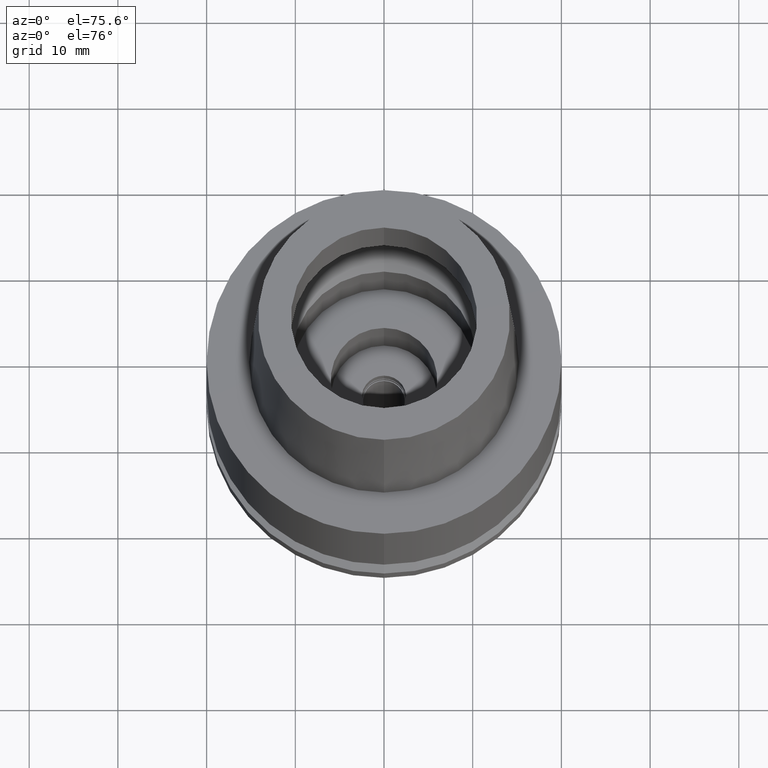
[diagram: clean part render]
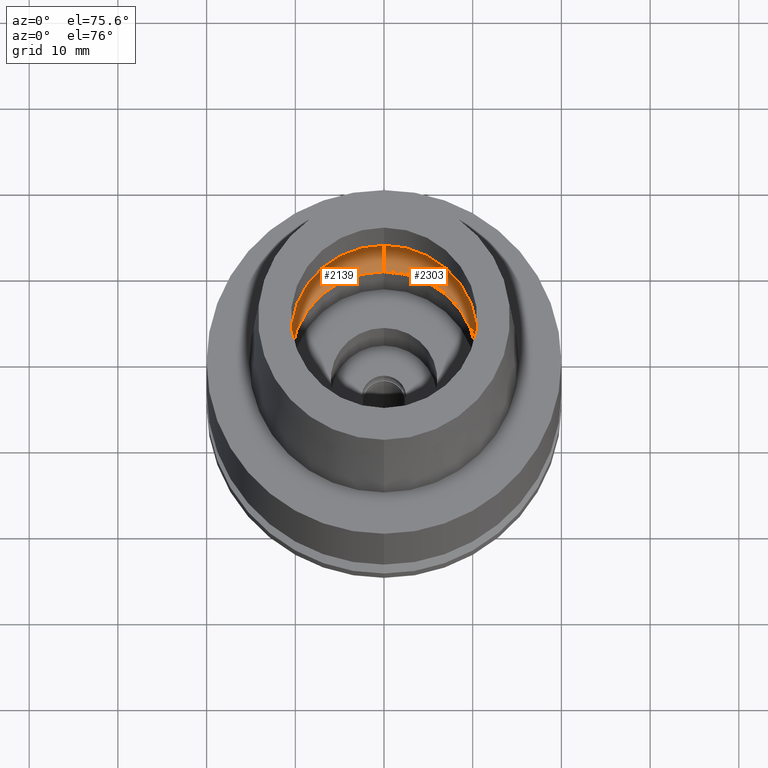
[diagram: same view with one multi-face feature highlighted, each face labeled with its STEP entity id]
A machine part, auxiliary view. The highlighted faces form ONE feature: a constant-radius fillet chain: 2 tangent blend faces with common blend radius 5 mm. The faces share edges in the B-rep.
Their STEP definitions:
[1] entity #2139 (Torus):
#20 = CARTESIAN_POINT ( 'NONE',  ( 0.0000000000000000000, 12.75000000000000000, 4.225999999999999979 ) ) ;
#24 = CARTESIAN_POINT ( 'NONE',  ( 0.0000000000000000000, -12.75000000000000000, 4.225999999999999979 ) ) ;
#56 = DIRECTION ( 'NONE',  ( 0.0000000000000000000, 1.000000000000000000, 0.0000000000000000000 ) ) ;
#246 = FACE_OUTER_BOUND ( 'NONE', #2660, .T. ) ;
#257 = ORIENTED_EDGE ( 'NONE', *, *, #1482, .F. ) ;
#355 = CARTESIAN_POINT ( 'NONE',  ( 0.0000000000000000000, 7.750000000000000000, 4.225999999999999979 ) ) ;
#429 = DIRECTION ( 'NONE',  ( -1.000000000000000000, 0.0000000000000000000, 0.0000000000000000000 ) ) ;
#450 = VERTEX_POINT ( 'NONE', #569 ) ;
#569 = CARTESIAN_POINT ( 'NONE',  ( 0.0000000000000000000, 10.50000000000000000, 0.05017672787746999680 ) ) ;
#688 = CARTESIAN_POINT ( 'NONE',  ( 0.0000000000000000000, 0.0000000000000000000, 0.05017672787747999574 ) ) ;
#696 = ORIENTED_EDGE ( 'NONE', *, *, #2000, .F. ) ;
#789 = DIRECTION ( 'NONE',  ( 0.0000000000000000000, 0.5500000000000007105, -0.8351646544245028281 ) ) ;
#792 = ORIENTED_EDGE ( 'NONE', *, *, #2515, .T. ) ;
#797 = AXIS2_PLACEMENT_3D ( 'NONE', #1073, #1246, #2109 ) ;
#1016 = VERTEX_POINT ( 'NONE', #24 ) ;
#1020 = CIRCLE ( 'NONE', #1937, 4.999999999999994671 ) ;
#1073 = CARTESIAN_POINT ( 'NONE',  ( 0.0000000000000000000, 0.0000000000000000000, 4.225999999999999979 ) ) ;
#1246 = DIRECTION ( 'NONE',  ( 0.0000000000000000000, 0.0000000000000000000, -1.000000000000000000 ) ) ;
#1279 = CIRCLE ( 'NONE', #797, 12.75000000000000000 ) ;
#1324 = CIRCLE ( 'NONE', #1681, 10.50000000000000000 ) ;
#1482 = EDGE_CURVE ( 'NONE', #1016, #1619, #1279, .T. ) ;
#1510 = DIRECTION ( 'NONE',  ( 0.0000000000000000000, 1.000000000000000000, 0.0000000000000000000 ) ) ;
#1619 = VERTEX_POINT ( 'NONE', #20 ) ;
#1641 = CIRCLE ( 'NONE', #1816, 4.999999999999994671 ) ;
#1681 = AXIS2_PLACEMENT_3D ( 'NONE', #688, #2602, #56 ) ;
#1761 = EDGE_CURVE ( 'NONE', #450, #2305, #1324, .T. ) ;
#1769 = TOROIDAL_SURFACE ( 'NONE', #2624, 7.750000000000000000, 5.000000000000000000 ) ;
#1816 = AXIS2_PLACEMENT_3D ( 'NONE', #355, #2481, #789 ) ;
#1913 = CARTESIAN_POINT ( 'NONE',  ( 0.0000000000000000000, 0.0000000000000000000, 4.225999999999999979 ) ) ;
#1937 = AXIS2_PLACEMENT_3D ( 'NONE', #2696, #429, #2473 ) ;
#1955 = CARTESIAN_POINT ( 'NONE',  ( 0.0000000000000000000, -10.50000000000000000, 0.05017672787747999574 ) ) ;
#2000 = EDGE_CURVE ( 'NONE', #2305, #1016, #1020, .T. ) ;
#2109 = DIRECTION ( 'NONE',  ( 0.0000000000000000000, -1.000000000000000000, 0.0000000000000000000 ) ) ;
#2134 = ORIENTED_EDGE ( 'NONE', *, *, #1761, .F. ) ;
#2139 = ADVANCED_FACE ( 'NONE', ( #246 ), #1769, .F. ) ;
#2160 = DIRECTION ( 'NONE',  ( 0.0000000000000000000, 0.0000000000000000000, 1.000000000000000000 ) ) ;
#2305 = VERTEX_POINT ( 'NONE', #1955 ) ;
#2473 = DIRECTION ( 'NONE',  ( 0.0000000000000000000, -0.5500000000000007105, -0.8351646544245028281 ) ) ;
#2481 = DIRECTION ( 'NONE',  ( 1.000000000000000000, 0.0000000000000000000, 0.0000000000000000000 ) ) ;
#2515 = EDGE_CURVE ( 'NONE', #450, #1619, #1641, .T. ) ;
#2602 = DIRECTION ( 'NONE',  ( 0.0000000000000000000, 0.0000000000000000000, 1.000000000000000000 ) ) ;
#2624 = AXIS2_PLACEMENT_3D ( 'NONE', #1913, #2160, #1510 ) ;
#2660 = EDGE_LOOP ( 'NONE', ( #257, #696, #2134, #792 ) ) ;
#2696 = CARTESIAN_POINT ( 'NONE',  ( 0.0000000000000000000, -7.750000000000000000, 4.225999999999999979 ) ) ;
[2] entity #2303 (Torus):
#20 = CARTESIAN_POINT ( 'NONE',  ( 0.0000000000000000000, 12.75000000000000000, 4.225999999999999979 ) ) ;
#24 = CARTESIAN_POINT ( 'NONE',  ( 0.0000000000000000000, -12.75000000000000000, 4.225999999999999979 ) ) ;
#74 = ORIENTED_EDGE ( 'NONE', *, *, #2515, .F. ) ;
#78 = EDGE_LOOP ( 'NONE', ( #966, #1912, #611, #74 ) ) ;
#125 = FACE_OUTER_BOUND ( 'NONE', #78, .T. ) ;
#311 = CARTESIAN_POINT ( 'NONE',  ( 0.0000000000000000000, 0.0000000000000000000, 4.225999999999999979 ) ) ;
#341 = DIRECTION ( 'NONE',  ( 0.0000000000000000000, 0.0000000000000000000, 1.000000000000000000 ) ) ;
#355 = CARTESIAN_POINT ( 'NONE',  ( 0.0000000000000000000, 7.750000000000000000, 4.225999999999999979 ) ) ;
#429 = DIRECTION ( 'NONE',  ( -1.000000000000000000, 0.0000000000000000000, 0.0000000000000000000 ) ) ;
#450 = VERTEX_POINT ( 'NONE', #569 ) ;
#569 = CARTESIAN_POINT ( 'NONE',  ( 0.0000000000000000000, 10.50000000000000000, 0.05017672787746999680 ) ) ;
#611 = ORIENTED_EDGE ( 'NONE', *, *, #2271, .F. ) ;
#789 = DIRECTION ( 'NONE',  ( 0.0000000000000000000, 0.5500000000000007105, -0.8351646544245028281 ) ) ;
#890 = TOROIDAL_SURFACE ( 'NONE', #2112, 7.750000000000000000, 5.000000000000000000 ) ;
#966 = ORIENTED_EDGE ( 'NONE', *, *, #1607, .F. ) ;
#1016 = VERTEX_POINT ( 'NONE', #24 ) ;
#1020 = CIRCLE ( 'NONE', #1937, 4.999999999999994671 ) ;
#1124 = DIRECTION ( 'NONE',  ( 0.0000000000000000000, 1.000000000000000000, 0.0000000000000000000 ) ) ;
#1164 = DIRECTION ( 'NONE',  ( 0.0000000000000000000, 0.0000000000000000000, -1.000000000000000000 ) ) ;
#1249 = CIRCLE ( 'NONE', #2501, 12.75000000000000000 ) ;
#1268 = DIRECTION ( 'NONE',  ( 0.0000000000000000000, 0.0000000000000000000, 1.000000000000000000 ) ) ;
#1461 = AXIS2_PLACEMENT_3D ( 'NONE', #1499, #1268, #2487 ) ;
#1499 = CARTESIAN_POINT ( 'NONE',  ( 0.0000000000000000000, 0.0000000000000000000, 0.05017672787747999574 ) ) ;
#1607 = EDGE_CURVE ( 'NONE', #2305, #450, #2400, .T. ) ;
#1619 = VERTEX_POINT ( 'NONE', #20 ) ;
#1641 = CIRCLE ( 'NONE', #1816, 4.999999999999994671 ) ;
#1781 = CARTESIAN_POINT ( 'NONE',  ( 0.0000000000000000000, 0.0000000000000000000, 4.225999999999999979 ) ) ;
#1816 = AXIS2_PLACEMENT_3D ( 'NONE', #355, #2481, #789 ) ;
#1912 = ORIENTED_EDGE ( 'NONE', *, *, #2000, .T. ) ;
#1937 = AXIS2_PLACEMENT_3D ( 'NONE', #2696, #429, #2473 ) ;
#1955 = CARTESIAN_POINT ( 'NONE',  ( 0.0000000000000000000, -10.50000000000000000, 0.05017672787747999574 ) ) ;
#2000 = EDGE_CURVE ( 'NONE', #2305, #1016, #1020, .T. ) ;
#2112 = AXIS2_PLACEMENT_3D ( 'NONE', #1781, #341, #1124 ) ;
#2271 = EDGE_CURVE ( 'NONE', #1619, #1016, #1249, .T. ) ;
#2303 = ADVANCED_FACE ( 'NONE', ( #125 ), #890, .F. ) ;
#2305 = VERTEX_POINT ( 'NONE', #1955 ) ;
#2400 = CIRCLE ( 'NONE', #1461, 10.50000000000000000 ) ;
#2473 = DIRECTION ( 'NONE',  ( 0.0000000000000000000, -0.5500000000000007105, -0.8351646544245028281 ) ) ;
#2481 = DIRECTION ( 'NONE',  ( 1.000000000000000000, 0.0000000000000000000, 0.0000000000000000000 ) ) ;
#2487 = DIRECTION ( 'NONE',  ( 0.0000000000000000000, -1.000000000000000000, 0.0000000000000000000 ) ) ;
#2501 = AXIS2_PLACEMENT_3D ( 'NONE', #311, #1164, #2625 ) ;
#2515 = EDGE_CURVE ( 'NONE', #450, #1619, #1641, .T. ) ;
#2625 = DIRECTION ( 'NONE',  ( 0.0000000000000000000, 1.000000000000000000, 0.0000000000000000000 ) ) ;
#2696 = CARTESIAN_POINT ( 'NONE',  ( 0.0000000000000000000, -7.750000000000000000, 4.225999999999999979 ) ) ;